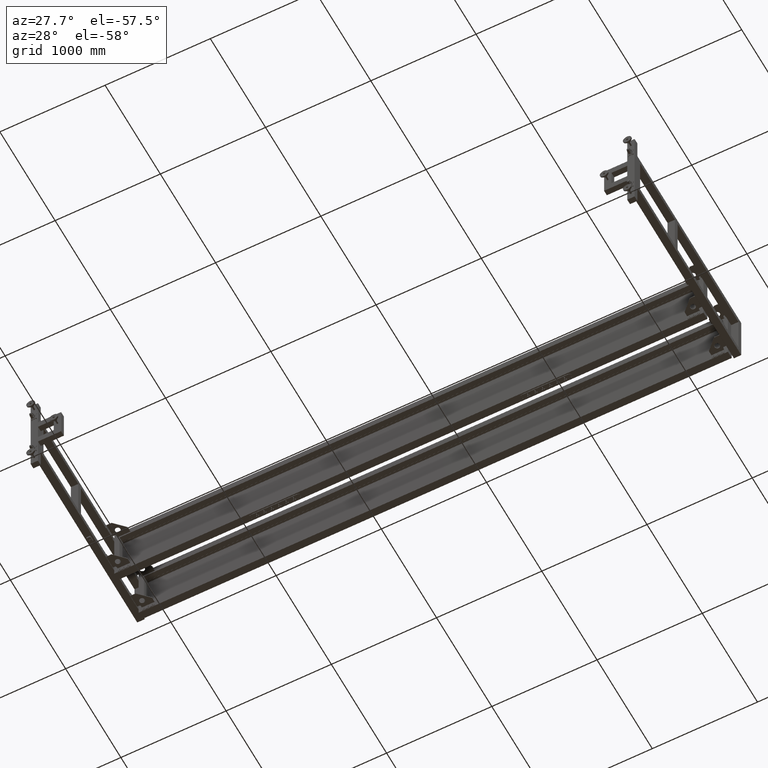
[diagram: clean part render]
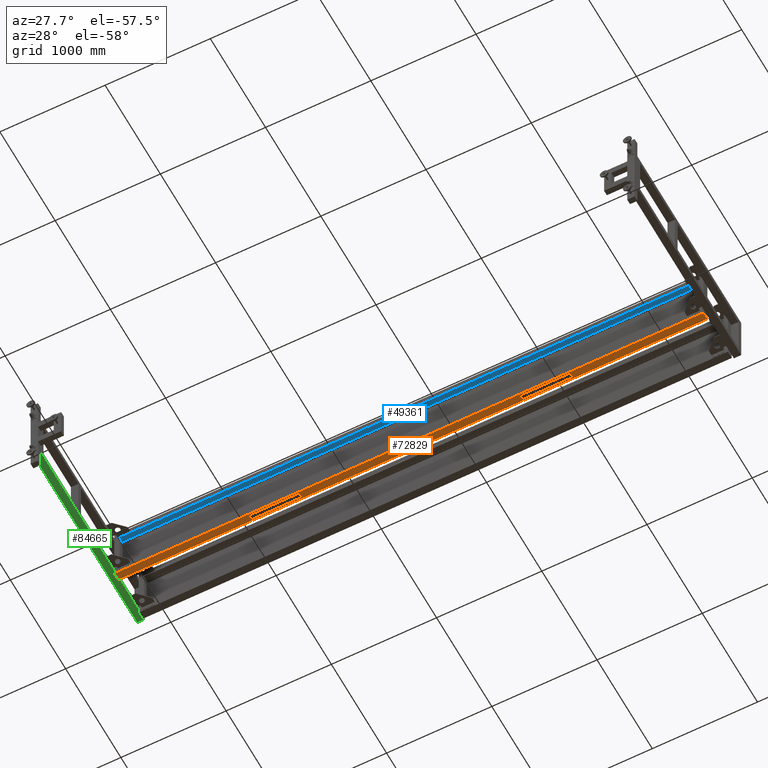
[diagram: same view with three faces highlighted in distinct colors, each labeled with its STEP entity id]
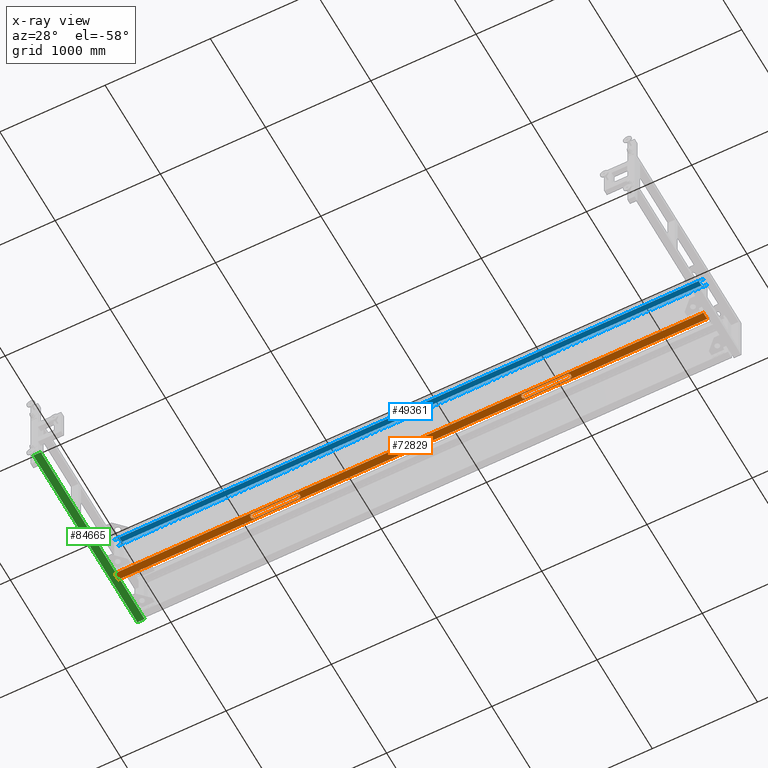
[diagram: x-ray of the same camera — body ghosted, the three highlighted faces saturated]
A machine part, auxiliary view with three faces highlighted in distinct colors.
The next image is the same camera in x-ray (body ghosted, the three faces saturated) — at least one of them is partly hidden behind the body in this view.
Their STEP definitions:

[orange] entity #72829 — the highlighted planar face has unit normal (-0, -0, 1).
#1346 = DIRECTION ( 'NONE',  ( 0.000000000000000000, 1.000000000000000000, 2.042911185666243997E-15 ) ) ;
#1910 = DIRECTION ( 'NONE',  ( 1.000000000000000000, -1.365026013856678295E-16, 0.000000000000000000 ) ) ;
#2050 = EDGE_CURVE ( 'NONE', #95591, #75280, #42420, .T. ) ;
#2436 = CIRCLE ( 'NONE', #25819, 5.000000000000004441 ) ;
#2445 = DIRECTION ( 'NONE',  ( 0.000000000000000000, -2.999999999999999839E-15, 1.000000000000000000 ) ) ;
#2632 = DIRECTION ( 'NONE',  ( 0.000000000000000000, 1.000000000000000000, 0.000000000000000000 ) ) ;
#2715 = EDGE_CURVE ( 'NONE', #90755, #54331, #7554, .T. ) ;
#2934 = CIRCLE ( 'NONE', #105916, 2.600000000000046718 ) ;
#3024 = ORIENTED_EDGE ( 'NONE', *, *, #99035, .F. ) ;
#3592 = CARTESIAN_POINT ( 'NONE',  ( 4329.827512562815173, 486.9410804020134833, -300.0000000000001137 ) ) ;
#3731 = DIRECTION ( 'NONE',  ( 3.178231158697545349E-16, -1.000000000000000000, -2.999999999999999839E-15 ) ) ;
#4086 = CIRCLE ( 'NONE', #110933, 5.000000000000004441 ) ;
#4170 = CARTESIAN_POINT ( 'NONE',  ( 473.8275125628138085, 516.9410804020126307, -300.0000000000000568 ) ) ;
#4325 = CARTESIAN_POINT ( 'NONE',  ( 2589.827512562815627, 531.9410804020134265, -300.0000000000000000 ) ) ;
#4535 = CARTESIAN_POINT ( 'NONE',  ( 3050.827512562816082, 505.9410804020130286, -300.0000000000000568 ) ) ;
#4823 = EDGE_CURVE ( 'NONE', #102930, #12884, #117511, .T. ) ;
#5460 = EDGE_CURVE ( 'NONE', #23975, #48283, #40451, .T. ) ;
#5527 = CARTESIAN_POINT ( 'NONE',  ( 21.82751256281362373, 497.4410804020126307, -300.0000000000001137 ) ) ;
#6268 = CARTESIAN_POINT ( 'NONE',  ( 21.82751256281362373, 546.4410804020125170, -299.9999999999999432 ) ) ;
#7554 = CIRCLE ( 'NONE', #90988, 2.599999999999935696 ) ;
#7572 = VERTEX_POINT ( 'NONE', #81256 ) ;
#7693 = EDGE_LOOP ( 'NONE', ( #89612, #86301, #101750, #15121, #76868, #38794, #113964, #102063, #92361, #19102, #39431, #39099, #21601, #19855, #13779, #70374 ) ) ;
#7846 = CARTESIAN_POINT ( 'NONE',  ( 474.8275125628136948, 505.9410804020157002, -300.0000000000000568 ) ) ;
#8251 = LINE ( 'NONE', #82918, #28241 ) ;
#8275 = LINE ( 'NONE', #35069, #11326 ) ;
#8426 = DIRECTION ( 'NONE',  ( 1.000000000000000000, -2.159379536615654760E-16, -1.601283208593959875E-30 ) ) ;
#8459 = DIRECTION ( 'NONE',  ( 0.000000000000000000, 2.999999999999999839E-15, -1.000000000000000000 ) ) ;
#9897 = EDGE_CURVE ( 'NONE', #32660, #71607, #81161, .T. ) ;
#10165 = EDGE_LOOP ( 'NONE', ( #32947, #116258 ) ) ;
#11235 = CARTESIAN_POINT ( 'NONE',  ( 465.8275125628138085, 497.4410804020126307, -300.0000000000001137 ) ) ;
#11318 = DIRECTION ( 'NONE',  ( 0.000000000000000000, 1.000000000000000000, 0.000000000000000000 ) ) ;
#11326 = VECTOR ( 'NONE', #53250, 1000.000000000000000 ) ;
#11392 = CARTESIAN_POINT ( 'NONE',  ( 12.82751256281372498, 503.3410804020126648, -300.0000000000000568 ) ) ;
#12083 = CARTESIAN_POINT ( 'NONE',  ( 3041.827512562816082, 511.9410804020130286, -300.0000000000000568 ) ) ;
#12207 = ORIENTED_EDGE ( 'NONE', *, *, #74429, .T. ) ;
#12211 = VERTEX_POINT ( 'NONE', #72589 ) ;
#12213 = DIRECTION ( 'NONE',  ( 0.000000000000000000, 1.000000000000000000, 0.000000000000000000 ) ) ;
#12301 = CARTESIAN_POINT ( 'NONE',  ( 2584.827512562816082, 531.9410804020134265, -300.0000000000000000 ) ) ;
#12711 = EDGE_CURVE ( 'NONE', #13046, #51890, #2934, .T. ) ;
#12884 = VERTEX_POINT ( 'NONE', #52675 ) ;
#13046 = VERTEX_POINT ( 'NONE', #35701 ) ;
#13284 = ORIENTED_EDGE ( 'NONE', *, *, #13917, .T. ) ;
#13383 = EDGE_CURVE ( 'NONE', #95858, #103266, #50619, .T. ) ;
#13779 = ORIENTED_EDGE ( 'NONE', *, *, #31055, .F. ) ;
#13917 = EDGE_CURVE ( 'NONE', #34990, #95333, #96565, .T. ) ;
#14014 = ORIENTED_EDGE ( 'NONE', *, *, #97252, .F. ) ;
#14755 = DIRECTION ( 'NONE',  ( 0.000000000000000000, 1.000000000000000000, 0.000000000000000000 ) ) ;
#15121 = ORIENTED_EDGE ( 'NONE', *, *, #45098, .T. ) ;
#15386 = VERTEX_POINT ( 'NONE', #4325 ) ;
#15654 = CARTESIAN_POINT ( 'NONE',  ( 465.8275125628138085, 546.4410804020125170, -299.9999999999999432 ) ) ;
#15746 = CIRCLE ( 'NONE', #25468, 5.000000000000004441 ) ;
#15833 = DIRECTION ( 'NONE',  ( -3.553834002357183893E-31, -2.603491776919587014E-15, 1.000000000000000000 ) ) ;
#15866 = CARTESIAN_POINT ( 'NONE',  ( 3054.827512562815627, 526.9410804020393471, -300.0000000000000000 ) ) ;
#16452 = FACE_BOUND ( 'NONE', #118392, .T. ) ;
#16537 = DIRECTION ( 'NONE',  ( 3.178231158697545349E-16, -1.000000000000000000, -2.042911185667941626E-15 ) ) ;
#16616 = CARTESIAN_POINT ( 'NONE',  ( 8.827512562813721431, 511.9410804020125738, -300.0000000000000568 ) ) ;
#16841 = DIRECTION ( 'NONE',  ( 3.178231158697545349E-16, -1.000000000000000000, -2.042911185667970814E-15 ) ) ;
#17443 = CIRCLE ( 'NONE', #100973, 2.599999999999935696 ) ;
#18218 = EDGE_CURVE ( 'NONE', #41128, #107957, #115385, .T. ) ;
#18774 = LINE ( 'NONE', #91055, #38301 ) ;
#19102 = ORIENTED_EDGE ( 'NONE', *, *, #99640, .T. ) ;
#19247 = AXIS2_PLACEMENT_3D ( 'NONE', #21300, #114363, #84472 ) ;
#19361 = DIRECTION ( 'NONE',  ( 1.000000000000000000, -2.855621721992514943E-14, -8.566865165977544482E-29 ) ) ;
#19855 = ORIENTED_EDGE ( 'NONE', *, *, #21476, .T. ) ;
#20598 = LINE ( 'NONE', #12083, #43920 ) ;
#20892 = EDGE_CURVE ( 'NONE', #7572, #80140, #106743, .T. ) ;
#21060 = VERTEX_POINT ( 'NONE', #25568 ) ;
#21138 = ORIENTED_EDGE ( 'NONE', *, *, #74343, .F. ) ;
#21149 = VECTOR ( 'NONE', #107241, 1000.000000000000000 ) ;
#21300 = CARTESIAN_POINT ( 'NONE',  ( 2589.827512562815627, 516.9410804020129717, -300.0000000000000568 ) ) ;
#21476 = EDGE_CURVE ( 'NONE', #108671, #68589, #68702, .T. ) ;
#21601 = ORIENTED_EDGE ( 'NONE', *, *, #22232, .F. ) ;
#21645 = EDGE_CURVE ( 'NONE', #51732, #15386, #110720, .T. ) ;
#22090 = CARTESIAN_POINT ( 'NONE',  ( 465.8275125628138085, 531.9410804020130854, -300.0000000000000000 ) ) ;
#22232 = EDGE_CURVE ( 'NONE', #108671, #15386, #88939, .T. ) ;
#22439 = CARTESIAN_POINT ( 'NONE',  ( 2588.827512562816082, 508.5410804020160640, -300.0000000000000568 ) ) ;
#22501 = CARTESIAN_POINT ( 'NONE',  ( 3050.827512562816082, 503.3410804020130627, -300.0000000000000568 ) ) ;
#22904 = VECTOR ( 'NONE', #30925, 1000.000000000000000 ) ;
#23637 = AXIS2_PLACEMENT_3D ( 'NONE', #68030, #32268, #12213 ) ;
#23748 = EDGE_CURVE ( 'NONE', #95591, #71967, #106959, .T. ) ;
#23825 = VERTEX_POINT ( 'NONE', #100825 ) ;
#23975 = VERTEX_POINT ( 'NONE', #6268 ) ;
#24061 = DIRECTION ( 'NONE',  ( 9.534693476092635663E-31, -2.999999999999999839E-15, 1.000000000000000000 ) ) ;
#24230 = VECTOR ( 'NONE', #50501, 1000.000000000000000 ) ;
#24819 = VERTEX_POINT ( 'NONE', #113440 ) ;
#24948 = FACE_BOUND ( 'NONE', #7693, .T. ) ;
#25027 = LINE ( 'NONE', #99810, #116731 ) ;
#25468 = AXIS2_PLACEMENT_3D ( 'NONE', #39045, #2445, #75901 ) ;
#25568 = CARTESIAN_POINT ( 'NONE',  ( 21.82751256281362373, 531.9410804020385513, -300.0000000000000000 ) ) ;
#25694 = VECTOR ( 'NONE', #16841, 1000.000000000000000 ) ;
#25786 = ORIENTED_EDGE ( 'NONE', *, *, #2715, .F. ) ;
#25819 = AXIS2_PLACEMENT_3D ( 'NONE', #41014, #107196, #2632 ) ;
#25920 = EDGE_CURVE ( 'NONE', #49812, #51732, #25027, .T. ) ;
#26028 = ORIENTED_EDGE ( 'NONE', *, *, #116708, .T. ) ;
#26171 = FACE_BOUND ( 'NONE', #71870, .T. ) ;
#26297 = EDGE_CURVE ( 'NONE', #78789, #118175, #74034, .T. ) ;
#26328 = EDGE_LOOP ( 'NONE', ( #106987, #82122 ) ) ;
#26524 = DIRECTION ( 'NONE',  ( 0.000000000000000000, 1.000000000000000000, 0.000000000000000000 ) ) ;
#26811 = CARTESIAN_POINT ( 'NONE',  ( 478.8275125628136948, 516.9410804020126307, -300.0000000000000568 ) ) ;
#27283 = EDGE_CURVE ( 'NONE', #51107, #103266, #2436, .T. ) ;
#27801 = VECTOR ( 'NONE', #1910, 1000.000000000000000 ) ;
#27911 = VERTEX_POINT ( 'NONE', #102576 ) ;
#28001 = EDGE_CURVE ( 'NONE', #51107, #113644, #103162, .T. ) ;
#28075 = ORIENTED_EDGE ( 'NONE', *, *, #18218, .F. ) ;
#28241 = VECTOR ( 'NONE', #111024, 1000.000000000000000 ) ;
#28305 = VERTEX_POINT ( 'NONE', #103131 ) ;
#28686 = LINE ( 'NONE', #56032, #27801 ) ;
#28738 = EDGE_LOOP ( 'NONE', ( #63513, #78971, #43381, #94432 ) ) ;
#28769 = AXIS2_PLACEMENT_3D ( 'NONE', #44036, #80922, #29261 ) ;
#28781 = AXIS2_PLACEMENT_3D ( 'NONE', #82342, #43606, #26524 ) ;
#29013 = VERTEX_POINT ( 'NONE', #64762 ) ;
#29205 = DIRECTION ( 'NONE',  ( 0.000000000000000000, 2.999999999999999839E-15, -1.000000000000000000 ) ) ;
#29261 = DIRECTION ( 'NONE',  ( 0.000000000000000000, 1.000000000000000000, 0.000000000000000000 ) ) ;
#29260 = CIRCLE ( 'NONE', #89432, 2.600000000000046718 ) ;
#29579 = DIRECTION ( 'NONE',  ( 0.000000000000000000, 1.000000000000000000, 0.000000000000000000 ) ) ;
#29862 = CARTESIAN_POINT ( 'NONE',  ( 3041.827512562815627, 546.4410804020129717, -299.9999999999999432 ) ) ;
#29865 = AXIS2_PLACEMENT_3D ( 'NONE', #66128, #85601, #111924 ) ;
#29877 = VECTOR ( 'NONE', #52774, 1000.000000000000000 ) ;
#29911 = CARTESIAN_POINT ( 'NONE',  ( -1266.172487437185964, 556.9410804020126307, -299.9999999999999432 ) ) ;
#29999 = VECTOR ( 'NONE', #116194, 1000.000000000000000 ) ;
#30416 = CARTESIAN_POINT ( 'NONE',  ( 12.82751256281372498, 505.9410804020125738, -300.0000000000000568 ) ) ;
#30492 = CARTESIAN_POINT ( 'NONE',  ( 2589.827512562815627, 511.9410804020129149, -300.0000000000000568 ) ) ;
#30634 = CARTESIAN_POINT ( 'NONE',  ( 3054.827512562816082, 516.9410804020130854, -300.0000000000000568 ) ) ;
#30751 = ORIENTED_EDGE ( 'NONE', *, *, #4823, .T. ) ;
#30925 = DIRECTION ( 'NONE',  ( 3.178231158697545349E-16, -1.000000000000000000, -2.603491776919587014E-15 ) ) ;
#31055 = EDGE_CURVE ( 'NONE', #38225, #68589, #65742, .T. ) ;
#31507 = CARTESIAN_POINT ( 'NONE',  ( 473.8275125628138085, 511.9410804020125738, -300.0000000000000568 ) ) ;
#31627 = ORIENTED_EDGE ( 'NONE', *, *, #54680, .F. ) ;
#31834 = CARTESIAN_POINT ( 'NONE',  ( 21.82751256281362373, 546.4410804020125170, -299.9999999999999432 ) ) ;
#31911 = CIRCLE ( 'NONE', #78379, 2.599999999999935696 ) ;
#32079 = LINE ( 'NONE', #43632, #61810 ) ;
#32268 = DIRECTION ( 'NONE',  ( 0.000000000000000000, 2.999999999999999839E-15, -1.000000000000000000 ) ) ;
#32660 = VERTEX_POINT ( 'NONE', #93165 ) ;
#32678 = CARTESIAN_POINT ( 'NONE',  ( 3050.827512562816082, 508.5410804020130513, -300.0000000000000568 ) ) ;
#32947 = ORIENTED_EDGE ( 'NONE', *, *, #20892, .T. ) ;
#33490 = DIRECTION ( 'NONE',  ( 0.000000000000000000, 1.000000000000000000, 2.999999999999999839E-15 ) ) ;
#34130 = CARTESIAN_POINT ( 'NONE',  ( 1133.827512562814718, 556.9410804020135402, -299.9999999999999432 ) ) ;
#34180 = VERTEX_POINT ( 'NONE', #37377 ) ;
#34728 = EDGE_CURVE ( 'NONE', #54331, #90755, #31911, .T. ) ;
#34775 = EDGE_LOOP ( 'NONE', ( #45196, #14014, #48947, #71088, #100489, #37687, #45305, #38504, #31627, #70672, #12207, #71399, #38858, #82245, #3024, #114777 ) ) ;
#34990 = VERTEX_POINT ( 'NONE', #92151 ) ;
#35069 = CARTESIAN_POINT ( 'NONE',  ( 3054.827512562815627, 531.9410804020394608, -300.0000000000000000 ) ) ;
#35139 = DIRECTION ( 'NONE',  ( 0.000000000000000000, 1.000000000000000000, 0.000000000000000000 ) ) ;
#35179 = DIRECTION ( 'NONE',  ( 0.000000000000000000, 2.999999999999999839E-15, -1.000000000000000000 ) ) ;
#35327 = FACE_BOUND ( 'NONE', #10165, .T. ) ;
#35701 = CARTESIAN_POINT ( 'NONE',  ( 12.82751256281372498, 540.5410804020125397, -299.9999999999999432 ) ) ;
#35705 = CARTESIAN_POINT ( 'NONE',  ( 474.8275125628136948, 505.9410804020157002, -300.0000000000000568 ) ) ;
#35854 = DIRECTION ( 'NONE',  ( 0.000000000000000000, 1.000000000000000000, 0.000000000000000000 ) ) ;
#36140 = DIRECTION ( 'NONE',  ( 0.000000000000000000, -1.000000000000000000, -2.603491776919587014E-15 ) ) ;
#36244 = DIRECTION ( 'NONE',  ( 9.534693476092635663E-31, -2.999999999999999839E-15, 1.000000000000000000 ) ) ;
#36965 = VERTEX_POINT ( 'NONE', #31507 ) ;
#37377 = CARTESIAN_POINT ( 'NONE',  ( 8.827512562813721431, 516.9410804020126307, -300.0000000000000568 ) ) ;
#37687 = ORIENTED_EDGE ( 'NONE', *, *, #13383, .F. ) ;
#38225 = VERTEX_POINT ( 'NONE', #30492 ) ;
#38301 = VECTOR ( 'NONE', #44969, 1000.000000000000000 ) ;
#38504 = ORIENTED_EDGE ( 'NONE', *, *, #5460, .F. ) ;
#38728 = EDGE_CURVE ( 'NONE', #36965, #113644, #71114, .T. ) ;
#38794 = ORIENTED_EDGE ( 'NONE', *, *, #111156, .T. ) ;
#38858 = ORIENTED_EDGE ( 'NONE', *, *, #72606, .T. ) ;
#38976 = CARTESIAN_POINT ( 'NONE',  ( 474.8275125628136948, 508.5410804020157229, -300.0000000000000568 ) ) ;
#39045 = CARTESIAN_POINT ( 'NONE',  ( 13.82751256281361485, 526.9410804020388923, -300.0000000000000000 ) ) ;
#39099 = ORIENTED_EDGE ( 'NONE', *, *, #21645, .T. ) ;
#39431 = ORIENTED_EDGE ( 'NONE', *, *, #25920, .T. ) ;
#40035 = CARTESIAN_POINT ( 'NONE',  ( 2588.827512562816082, 505.9410804020160413, -300.0000000000000568 ) ) ;
#40451 = LINE ( 'NONE', #31834, #101039 ) ;
#40547 = DIRECTION ( 'NONE',  ( 0.000000000000000000, 1.000000000000000000, 0.000000000000000000 ) ) ;
#40826 = EDGE_LOOP ( 'NONE', ( #26028, #13284 ) ) ;
#41014 = CARTESIAN_POINT ( 'NONE',  ( 473.8275125628138085, 526.9410804020129717, -300.0000000000000000 ) ) ;
#41128 = VERTEX_POINT ( 'NONE', #56545 ) ;
#41730 = CARTESIAN_POINT ( 'NONE',  ( 8.827512562813721431, 526.9410804020388923, -300.0000000000000000 ) ) ;
#41789 = EDGE_CURVE ( 'NONE', #28305, #90628, #4086, .T. ) ;
#41983 = CARTESIAN_POINT ( 'NONE',  ( 1133.827512562814718, 556.9410804020135402, -299.9999999999999432 ) ) ;
#42420 = LINE ( 'NONE', #45262, #99694 ) ;
#42677 = FACE_BOUND ( 'NONE', #34775, .T. ) ;
#43381 = ORIENTED_EDGE ( 'NONE', *, *, #109910, .F. ) ;
#43606 = DIRECTION ( 'NONE',  ( -9.534693476092635663E-31, 2.999999999999999839E-15, -1.000000000000000000 ) ) ;
#43632 = CARTESIAN_POINT ( 'NONE',  ( 465.8275125628138085, 546.4410804020125170, -299.9999999999999432 ) ) ;
#43698 = ORIENTED_EDGE ( 'NONE', *, *, #12711, .F. ) ;
#43920 = VECTOR ( 'NONE', #86182, 1000.000000000000000 ) ;
#44036 = CARTESIAN_POINT ( 'NONE',  ( 13.82751256281361485, 516.9410804020126307, -300.0000000000000568 ) ) ;
#44475 = FACE_BOUND ( 'NONE', #79626, .T. ) ;
#44969 = DIRECTION ( 'NONE',  ( 0.000000000000000000, -1.000000000000000000, -2.042911185667970814E-15 ) ) ;
#45061 = FACE_BOUND ( 'NONE', #26328, .T. ) ;
#45098 = EDGE_CURVE ( 'NONE', #49834, #27911, #61357, .T. ) ;
#45196 = ORIENTED_EDGE ( 'NONE', *, *, #112557, .F. ) ;
#45262 = CARTESIAN_POINT ( 'NONE',  ( -1266.172487437185964, 556.9410804020126307, -299.9999999999999432 ) ) ;
#45305 = ORIENTED_EDGE ( 'NONE', *, *, #63394, .F. ) ;
#46388 = CARTESIAN_POINT ( 'NONE',  ( 3041.827512562815627, 546.4410804020129717, -299.9999999999999432 ) ) ;
#47386 = LINE ( 'NONE', #54068, #49184 ) ;
#47919 = ORIENTED_EDGE ( 'NONE', *, *, #103584, .T. ) ;
#48283 = VERTEX_POINT ( 'NONE', #15654 ) ;
#48403 = DIRECTION ( 'NONE',  ( 0.000000000000000000, -1.000000000000000000, -2.999999999999999839E-15 ) ) ;
#48947 = ORIENTED_EDGE ( 'NONE', *, *, #38728, .T. ) ;
#49177 = CARTESIAN_POINT ( 'NONE',  ( 2597.827512562816082, 546.4410804020128580, -299.9999999999999432 ) ) ;
#49184 = VECTOR ( 'NONE', #91730, 1000.000000000000000 ) ;
#49298 = VERTEX_POINT ( 'NONE', #30634 ) ;
#49340 = VERTEX_POINT ( 'NONE', #87674 ) ;
#49777 = CARTESIAN_POINT ( 'NONE',  ( 4329.827512562815173, 556.9410804020135402, -299.9999999999999432 ) ) ;
#49812 = VERTEX_POINT ( 'NONE', #49177 ) ;
#49834 = VERTEX_POINT ( 'NONE', #77050 ) ;
#50251 = VERTEX_POINT ( 'NONE', #11235 ) ;
#50381 = AXIS2_PLACEMENT_3D ( 'NONE', #40035, #59885, #114735 ) ;
#50501 = DIRECTION ( 'NONE',  ( 1.000000000000000000, 2.553105581768966438E-16, -1.875376730785736675E-31 ) ) ;
#50619 = LINE ( 'NONE', #22090, #115908 ) ;
#51107 = VERTEX_POINT ( 'NONE', #68336 ) ;
#51305 = CARTESIAN_POINT ( 'NONE',  ( 3050.827512562815627, 535.3410804020130627, -300.0000000000000000 ) ) ;
#51516 = CARTESIAN_POINT ( 'NONE',  ( 2588.827512562816082, 535.3410804020161322, -300.0000000000000000 ) ) ;
#51577 = EDGE_CURVE ( 'NONE', #82561, #49834, #20598, .T. ) ;
#51732 = VERTEX_POINT ( 'NONE', #97136 ) ;
#51790 = EDGE_CURVE ( 'NONE', #118175, #78789, #63099, .T. ) ;
#51890 = VERTEX_POINT ( 'NONE', #59283 ) ;
#52003 = CARTESIAN_POINT ( 'NONE',  ( 2588.827512562816082, 505.9410804020160413, -300.0000000000000568 ) ) ;
#52142 = LINE ( 'NONE', #49777, #22904 ) ;
#52393 = DIRECTION ( 'NONE',  ( -9.534693476092635663E-31, 2.999999999999999839E-15, -1.000000000000000000 ) ) ;
#52675 = CARTESIAN_POINT ( 'NONE',  ( 2588.827512562816082, 540.5410804020159503, -299.9999999999999432 ) ) ;
#52774 = DIRECTION ( 'NONE',  ( 1.000000000000000000, -1.365026013856678295E-16, 0.000000000000000000 ) ) ;
#53250 = DIRECTION ( 'NONE',  ( -1.000000000000000000, -2.887404033579490678E-14, -8.566865165977544482E-29 ) ) ;
#53888 = DIRECTION ( 'NONE',  ( 0.000000000000000000, 2.999999999999999839E-15, -1.000000000000000000 ) ) ;
#54068 = CARTESIAN_POINT ( 'NONE',  ( 21.82751256281362373, 511.9410804020125738, -300.0000000000000568 ) ) ;
#54151 = VECTOR ( 'NONE', #19361, 1000.000000000000000 ) ;
#54326 = VECTOR ( 'NONE', #79623, 1000.000000000000000 ) ;
#54331 = VERTEX_POINT ( 'NONE', #114019 ) ;
#54495 = DIRECTION ( 'NONE',  ( 9.534693476092635663E-31, -2.999999999999999839E-15, 1.000000000000000000 ) ) ;
#54680 = EDGE_CURVE ( 'NONE', #21060, #23975, #59042, .T. ) ;
#54728 = DIRECTION ( 'NONE',  ( -1.000000000000000000, -1.118464720166734600E-15, -2.401924812890939987E-30 ) ) ;
#55302 = EDGE_CURVE ( 'NONE', #28305, #29013, #8275, .T. ) ;
#56032 = CARTESIAN_POINT ( 'NONE',  ( 1133.827512562814718, 486.9410804020135402, -300.0000000000001137 ) ) ;
#56545 = CARTESIAN_POINT ( 'NONE',  ( 474.8275125628136948, 540.5410804020156093, -299.9999999999999432 ) ) ;
#57010 = EDGE_CURVE ( 'NONE', #81932, #113442, #75912, .T. ) ;
#57144 = VECTOR ( 'NONE', #84546, 1000.000000000000000 ) ;
#57343 = AXIS2_PLACEMENT_3D ( 'NONE', #89749, #71442, #35139 ) ;
#58990 = VECTOR ( 'NONE', #120005, 1000.000000000000000 ) ;
#59042 = LINE ( 'NONE', #96190, #81090 ) ;
#59283 = CARTESIAN_POINT ( 'NONE',  ( 12.82751256281372498, 535.3410804020127216, -300.0000000000000000 ) ) ;
#59799 = CIRCLE ( 'NONE', #108417, 2.599999999999935696 ) ;
#59820 = DIRECTION ( 'NONE',  ( 9.534693476092635663E-31, -2.999999999999999839E-15, 1.000000000000000000 ) ) ;
#59885 = DIRECTION ( 'NONE',  ( 9.534693476092635663E-31, -2.999999999999999839E-15, 1.000000000000000000 ) ) ;
#60465 = DIRECTION ( 'NONE',  ( 0.000000000000000000, 1.000000000000000000, 0.000000000000000000 ) ) ;
#60749 = CARTESIAN_POINT ( 'NONE',  ( 3054.827512562816082, 511.9410804020130286, -300.0000000000000568 ) ) ;
#61152 = DIRECTION ( 'NONE',  ( 0.000000000000000000, -1.000000000000000000, -2.042911185667941626E-15 ) ) ;
#61357 = LINE ( 'NONE', #60749, #29999 ) ;
#61455 = CARTESIAN_POINT ( 'NONE',  ( 3049.827512562815627, 526.9410804020393471, -300.0000000000000000 ) ) ;
#61810 = VECTOR ( 'NONE', #61152, 1000.000000000000000 ) ;
#62544 = FACE_BOUND ( 'NONE', #63836, .T. ) ;
#63099 = CIRCLE ( 'NONE', #57343, 2.600000000000046718 ) ;
#63394 = EDGE_CURVE ( 'NONE', #48283, #95858, #32079, .T. ) ;
#63513 = ORIENTED_EDGE ( 'NONE', *, *, #23748, .T. ) ;
#63836 = EDGE_LOOP ( 'NONE', ( #110522, #28075 ) ) ;
#64762 = CARTESIAN_POINT ( 'NONE',  ( 3041.827512562815627, 531.9410804020390060, -300.0000000000000000 ) ) ;
#64846 = CARTESIAN_POINT ( 'NONE',  ( 2597.827512562816082, 511.9410804020129149, -300.0000000000000568 ) ) ;
#65262 = ORIENTED_EDGE ( 'NONE', *, *, #34728, .F. ) ;
#65360 = DIRECTION ( 'NONE',  ( 9.534693476092635663E-31, -2.999999999999999839E-15, 1.000000000000000000 ) ) ;
#65455 = CARTESIAN_POINT ( 'NONE',  ( 8.827512562813721431, 531.9410804020390060, -300.0000000000000000 ) ) ;
#65742 = CIRCLE ( 'NONE', #19247, 5.000000000000004441 ) ;
#66128 = CARTESIAN_POINT ( 'NONE',  ( 12.82751256281372498, 537.9410804020126307, -299.9999999999999432 ) ) ;
#66212 = DIRECTION ( 'NONE',  ( 0.000000000000000000, 1.000000000000000000, 0.000000000000000000 ) ) ;
#66777 = CARTESIAN_POINT ( 'NONE',  ( 3041.827512562816082, 497.4410804020131422, -300.0000000000001137 ) ) ;
#66847 = VECTOR ( 'NONE', #48403, 1000.000000000000000 ) ;
#66871 = DIRECTION ( 'NONE',  ( 0.000000000000000000, 1.000000000000000000, 0.000000000000000000 ) ) ;
#68013 = EDGE_CURVE ( 'NONE', #24819, #49340, #88275, .T. ) ;
#68030 = CARTESIAN_POINT ( 'NONE',  ( 12.82751256281372498, 505.9410804020125738, -300.0000000000000568 ) ) ;
#68144 = LINE ( 'NONE', #5527, #54326 ) ;
#68336 = CARTESIAN_POINT ( 'NONE',  ( 478.8275125628136948, 526.9410804020129717, -300.0000000000000000 ) ) ;
#68589 = VERTEX_POINT ( 'NONE', #82909 ) ;
#68702 = LINE ( 'NONE', #12301, #85622 ) ;
#68731 = CARTESIAN_POINT ( 'NONE',  ( 21.82751256281362373, 497.4410804020126307, -300.0000000000001137 ) ) ;
#70300 = DIRECTION ( 'NONE',  ( 0.000000000000000000, 1.000000000000000000, 0.000000000000000000 ) ) ;
#70374 = ORIENTED_EDGE ( 'NONE', *, *, #91879, .T. ) ;
#70500 = EDGE_CURVE ( 'NONE', #34180, #83922, #79548, .T. ) ;
#70672 = ORIENTED_EDGE ( 'NONE', *, *, #102375, .F. ) ;
#71088 = ORIENTED_EDGE ( 'NONE', *, *, #28001, .F. ) ;
#71114 = CIRCLE ( 'NONE', #112083, 5.000000000000004441 ) ;
#71399 = ORIENTED_EDGE ( 'NONE', *, *, #70500, .F. ) ;
#71442 = DIRECTION ( 'NONE',  ( 9.534693476092635663E-31, -2.999999999999999839E-15, 1.000000000000000000 ) ) ;
#71458 = CARTESIAN_POINT ( 'NONE',  ( 3050.827512562815627, 537.9410804020130854, -299.9999999999999432 ) ) ;
#71607 = VERTEX_POINT ( 'NONE', #100213 ) ;
#71870 = EDGE_LOOP ( 'NONE', ( #65262, #25786 ) ) ;
#71967 = VERTEX_POINT ( 'NONE', #90383 ) ;
#72018 = CARTESIAN_POINT ( 'NONE',  ( 2597.827512562816082, 511.9410804020129149, -300.0000000000000568 ) ) ;
#72216 = FACE_BOUND ( 'NONE', #40826, .T. ) ;
#72589 = CARTESIAN_POINT ( 'NONE',  ( 465.8275125628138085, 511.9410804020125738, -300.0000000000000568 ) ) ;
#72606 = EDGE_CURVE ( 'NONE', #34180, #49340, #90870, .T. ) ;
#72631 = CARTESIAN_POINT ( 'NONE',  ( 2588.827512562816082, 537.9410804020160413, -299.9999999999999432 ) ) ;
#72829 = ADVANCED_FACE ( 'NONE', ( #107687, #72216, #44475, #35327, #45061, #24948, #16452, #62544, #26171, #91755, #42677 ), #98523, .F. ) ;
#73443 = AXIS2_PLACEMENT_3D ( 'NONE', #34130, #15833, #89933 ) ;
#74034 = CIRCLE ( 'NONE', #79857, 2.600000000000046718 ) ;
#74162 = DIRECTION ( 'NONE',  ( -9.534693476092635663E-31, 2.999999999999999839E-15, -1.000000000000000000 ) ) ;
#74343 = EDGE_CURVE ( 'NONE', #113442, #81932, #29260, .T. ) ;
#74429 = EDGE_CURVE ( 'NONE', #23825, #83922, #15746, .T. ) ;
#75140 = CIRCLE ( 'NONE', #106383, 5.000000000000004441 ) ;
#75280 = VERTEX_POINT ( 'NONE', #108843 ) ;
#75446 = DIRECTION ( 'NONE',  ( -1.000000000000000000, -5.337610695313200109E-16, -1.601283208593959875E-30 ) ) ;
#75901 = DIRECTION ( 'NONE',  ( 0.000000000000000000, 1.000000000000000000, 0.000000000000000000 ) ) ;
#75912 = CIRCLE ( 'NONE', #23637, 2.600000000000046718 ) ;
#76034 = EDGE_CURVE ( 'NONE', #71607, #82561, #80777, .T. ) ;
#76868 = ORIENTED_EDGE ( 'NONE', *, *, #87087, .F. ) ;
#77050 = CARTESIAN_POINT ( 'NONE',  ( 3041.827512562816082, 511.9410804020130286, -300.0000000000000568 ) ) ;
#77170 = EDGE_CURVE ( 'NONE', #29013, #92854, #8251, .T. ) ;
#77302 = DIRECTION ( 'NONE',  ( 1.000000000000000000, 6.251255769285789110E-17, 1.875376730785736675E-31 ) ) ;
#78356 = CARTESIAN_POINT ( 'NONE',  ( 3041.827512562816082, 497.4410804020131422, -300.0000000000001137 ) ) ;
#78379 = AXIS2_PLACEMENT_3D ( 'NONE', #7846, #110039, #35854 ) ;
#78402 = VERTEX_POINT ( 'NONE', #68731 ) ;
#78789 = VERTEX_POINT ( 'NONE', #22501 ) ;
#78971 = ORIENTED_EDGE ( 'NONE', *, *, #93261, .T. ) ;
#79443 = DIRECTION ( 'NONE',  ( 0.000000000000000000, 1.000000000000000000, 0.000000000000000000 ) ) ;
#79548 = LINE ( 'NONE', #107671, #91641 ) ;
#79623 = DIRECTION ( 'NONE',  ( -1.000000000000000000, -6.251255769285789110E-17, -1.875376730785736675E-31 ) ) ;
#79626 = EDGE_LOOP ( 'NONE', ( #30751, #47919 ) ) ;
#79857 = AXIS2_PLACEMENT_3D ( 'NONE', #4535, #59820, #40547 ) ;
#80035 = DIRECTION ( 'NONE',  ( 0.000000000000000000, -2.999999999999999839E-15, 1.000000000000000000 ) ) ;
#80140 = VERTEX_POINT ( 'NONE', #22439 ) ;
#80777 = LINE ( 'NONE', #78356, #24230 ) ;
#80922 = DIRECTION ( 'NONE',  ( 0.000000000000000000, -2.999999999999999839E-15, 1.000000000000000000 ) ) ;
#81090 = VECTOR ( 'NONE', #1346, 1000.000000000000000 ) ;
#81161 = LINE ( 'NONE', #72018, #25694 ) ;
#81256 = CARTESIAN_POINT ( 'NONE',  ( 2588.827512562816082, 503.3410804020160754, -300.0000000000000568 ) ) ;
#81814 = VERTEX_POINT ( 'NONE', #3592 ) ;
#81932 = VERTEX_POINT ( 'NONE', #87714 ) ;
#82122 = ORIENTED_EDGE ( 'NONE', *, *, #51790, .T. ) ;
#82245 = ORIENTED_EDGE ( 'NONE', *, *, #68013, .F. ) ;
#82342 = CARTESIAN_POINT ( 'NONE',  ( 2589.827512562815627, 526.9410804020133128, -300.0000000000000000 ) ) ;
#82561 = VERTEX_POINT ( 'NONE', #66777 ) ;
#82909 = CARTESIAN_POINT ( 'NONE',  ( 2584.827512562816082, 516.9410804020129717, -300.0000000000000568 ) ) ;
#82918 = CARTESIAN_POINT ( 'NONE',  ( 3041.827512562815627, 546.4410804020129717, -299.9999999999999432 ) ) ;
#83477 = CARTESIAN_POINT ( 'NONE',  ( 2588.827512562816082, 537.9410804020160413, -299.9999999999999432 ) ) ;
#83724 = LINE ( 'NONE', #65455, #54151 ) ;
#83922 = VERTEX_POINT ( 'NONE', #41730 ) ;
#83930 = LINE ( 'NONE', #29862, #57144 ) ;
#84472 = DIRECTION ( 'NONE',  ( 0.000000000000000000, 1.000000000000000000, 0.000000000000000000 ) ) ;
#84546 = DIRECTION ( 'NONE',  ( -1.000000000000000000, -2.553105581768966438E-16, 1.875376730785736675E-31 ) ) ;
#84627 = CARTESIAN_POINT ( 'NONE',  ( 465.8275125628138085, 511.9410804020125738, -300.0000000000000568 ) ) ;
#85397 = DIRECTION ( 'NONE',  ( 0.000000000000000000, 2.999999999999999839E-15, -1.000000000000000000 ) ) ;
#85601 = DIRECTION ( 'NONE',  ( 0.000000000000000000, 2.999999999999999839E-15, -1.000000000000000000 ) ) ;
#85622 = VECTOR ( 'NONE', #3731, 1000.000000000000000 ) ;
#86182 = DIRECTION ( 'NONE',  ( -3.094466517449440847E-14, 1.000000000000000000, 2.042911185667979886E-15 ) ) ;
#86301 = ORIENTED_EDGE ( 'NONE', *, *, #76034, .T. ) ;
#87087 = EDGE_CURVE ( 'NONE', #49298, #27911, #75140, .T. ) ;
#87363 = DIRECTION ( 'NONE',  ( 9.534693476092635663E-31, -2.999999999999999839E-15, 1.000000000000000000 ) ) ;
#87674 = CARTESIAN_POINT ( 'NONE',  ( 13.82751256281361485, 511.9410804020125738, -300.0000000000000568 ) ) ;
#87714 = CARTESIAN_POINT ( 'NONE',  ( 12.82751256281372498, 508.5410804020125966, -300.0000000000000568 ) ) ;
#87880 = EDGE_CURVE ( 'NONE', #80140, #7572, #112479, .T. ) ;
#88275 = LINE ( 'NONE', #16616, #21149 ) ;
#88816 = DIRECTION ( 'NONE',  ( 1.000000000000000000, -8.006416042969800163E-16, -2.401924812890939987E-30 ) ) ;
#88939 = CIRCLE ( 'NONE', #28781, 5.000000000000004441 ) ;
#89432 = AXIS2_PLACEMENT_3D ( 'NONE', #30416, #29205, #66212 ) ;
#89612 = ORIENTED_EDGE ( 'NONE', *, *, #9897, .T. ) ;
#89749 = CARTESIAN_POINT ( 'NONE',  ( 3050.827512562816082, 505.9410804020130286, -300.0000000000000568 ) ) ;
#89933 = DIRECTION ( 'NONE',  ( -1.365026013856678295E-16, -1.000000000000000000, -2.603491776919587014E-15 ) ) ;
#90383 = CARTESIAN_POINT ( 'NONE',  ( 4329.827512562815173, 556.9410804020135402, -299.9999999999999432 ) ) ;
#90628 = VERTEX_POINT ( 'NONE', #15866 ) ;
#90707 = AXIS2_PLACEMENT_3D ( 'NONE', #111137, #65360, #100783 ) ;
#90755 = VERTEX_POINT ( 'NONE', #38976 ) ;
#90870 = CIRCLE ( 'NONE', #28769, 5.000000000000004441 ) ;
#90988 = AXIS2_PLACEMENT_3D ( 'NONE', #35705, #53888, #120209 ) ;
#91055 = CARTESIAN_POINT ( 'NONE',  ( 465.8275125628138085, 511.9410804020125738, -300.0000000000000568 ) ) ;
#91353 = VECTOR ( 'NONE', #75446, 1000.000000000000000 ) ;
#91444 = DIRECTION ( 'NONE',  ( 0.000000000000000000, 1.000000000000000000, 0.000000000000000000 ) ) ;
#91641 = VECTOR ( 'NONE', #33490, 1000.000000000000000 ) ;
#91685 = CARTESIAN_POINT ( 'NONE',  ( 12.82751256281372498, 537.9410804020126307, -299.9999999999999432 ) ) ;
#91730 = DIRECTION ( 'NONE',  ( 3.062684205862465112E-14, 1.000000000000000000, 2.042911185667979886E-15 ) ) ;
#91755 = FACE_BOUND ( 'NONE', #118115, .T. ) ;
#91879 = EDGE_CURVE ( 'NONE', #38225, #32660, #120332, .T. ) ;
#92151 = CARTESIAN_POINT ( 'NONE',  ( 3050.827512562815627, 540.5410804020129945, -299.9999999999999432 ) ) ;
#92361 = ORIENTED_EDGE ( 'NONE', *, *, #77170, .T. ) ;
#92854 = VERTEX_POINT ( 'NONE', #46388 ) ;
#93155 = LINE ( 'NONE', #112086, #58990 ) ;
#93165 = CARTESIAN_POINT ( 'NONE',  ( 2597.827512562816082, 511.9410804020129149, -300.0000000000000568 ) ) ;
#93261 = EDGE_CURVE ( 'NONE', #71967, #81814, #52142, .T. ) ;
#94290 = EDGE_CURVE ( 'NONE', #107957, #41128, #59799, .T. ) ;
#94432 = ORIENTED_EDGE ( 'NONE', *, *, #2050, .F. ) ;
#95333 = VERTEX_POINT ( 'NONE', #51305 ) ;
#95591 = VERTEX_POINT ( 'NONE', #29911 ) ;
#95858 = VERTEX_POINT ( 'NONE', #117757 ) ;
#96190 = CARTESIAN_POINT ( 'NONE',  ( 21.82751256281362373, 546.4410804020125170, -299.9999999999999432 ) ) ;
#96535 = EDGE_CURVE ( 'NONE', #50251, #78402, #68144, .T. ) ;
#96565 = CIRCLE ( 'NONE', #90707, 2.600000000000046718 ) ;
#97136 = CARTESIAN_POINT ( 'NONE',  ( 2597.827512562816082, 531.9410804020134265, -300.0000000000000000 ) ) ;
#97252 = EDGE_CURVE ( 'NONE', #36965, #12211, #104173, .T. ) ;
#98523 = PLANE ( 'NONE',  #73443 ) ;
#99035 = EDGE_CURVE ( 'NONE', #78402, #24819, #47386, .T. ) ;
#99352 = VECTOR ( 'NONE', #54728, 1000.000000000000000 ) ;
#99640 = EDGE_CURVE ( 'NONE', #92854, #49812, #83930, .T. ) ;
#99693 = CARTESIAN_POINT ( 'NONE',  ( 473.8275125628138085, 531.9410804020130854, -300.0000000000000000 ) ) ;
#99694 = VECTOR ( 'NONE', #36140, 1000.000000000000000 ) ;
#99810 = CARTESIAN_POINT ( 'NONE',  ( 2597.827512562816082, 546.4410804020128580, -299.9999999999999432 ) ) ;
#100073 = ORIENTED_EDGE ( 'NONE', *, *, #57010, .F. ) ;
#100213 = CARTESIAN_POINT ( 'NONE',  ( 2597.827512562816082, 497.4410804020129717, -300.0000000000001137 ) ) ;
#100375 = CARTESIAN_POINT ( 'NONE',  ( 2597.827512562816082, 531.9410804020134265, -300.0000000000000000 ) ) ;
#100489 = ORIENTED_EDGE ( 'NONE', *, *, #27283, .T. ) ;
#100783 = DIRECTION ( 'NONE',  ( 0.000000000000000000, 1.000000000000000000, 0.000000000000000000 ) ) ;
#100825 = CARTESIAN_POINT ( 'NONE',  ( 13.82751256281361485, 531.9410804020387786, -300.0000000000000000 ) ) ;
#100973 = AXIS2_PLACEMENT_3D ( 'NONE', #72631, #54495, #119655 ) ;
#101039 = VECTOR ( 'NONE', #77302, 1000.000000000000000 ) ;
#101750 = ORIENTED_EDGE ( 'NONE', *, *, #51577, .T. ) ;
#102063 = ORIENTED_EDGE ( 'NONE', *, *, #55302, .T. ) ;
#102375 = EDGE_CURVE ( 'NONE', #23825, #21060, #83724, .T. ) ;
#102576 = CARTESIAN_POINT ( 'NONE',  ( 3049.827512562816082, 511.9410804020130286, -300.0000000000000568 ) ) ;
#102850 = ORIENTED_EDGE ( 'NONE', *, *, #110150, .F. ) ;
#102930 = VERTEX_POINT ( 'NONE', #51516 ) ;
#103131 = CARTESIAN_POINT ( 'NONE',  ( 3049.827512562815627, 531.9410804020392334, -300.0000000000000000 ) ) ;
#103162 = LINE ( 'NONE', #112324, #66847 ) ;
#103266 = VERTEX_POINT ( 'NONE', #99693 ) ;
#103584 = EDGE_CURVE ( 'NONE', #12884, #102930, #17443, .T. ) ;
#104173 = LINE ( 'NONE', #84627, #91353 ) ;
#105916 = AXIS2_PLACEMENT_3D ( 'NONE', #91685, #8459, #111843 ) ;
#106383 = AXIS2_PLACEMENT_3D ( 'NONE', #112618, #74162, #66871 ) ;
#106649 = AXIS2_PLACEMENT_3D ( 'NONE', #52003, #24061, #60465 ) ;
#106743 = CIRCLE ( 'NONE', #50381, 2.599999999999935696 ) ;
#106959 = LINE ( 'NONE', #41983, #29877 ) ;
#106987 = ORIENTED_EDGE ( 'NONE', *, *, #26297, .T. ) ;
#107196 = DIRECTION ( 'NONE',  ( 0.000000000000000000, -2.999999999999999839E-15, 1.000000000000000000 ) ) ;
#107241 = DIRECTION ( 'NONE',  ( -1.000000000000000000, -1.441154887734540166E-14, -4.323464663203620161E-29 ) ) ;
#107671 = CARTESIAN_POINT ( 'NONE',  ( 8.827512562813721431, 531.9410804020390060, -300.0000000000000000 ) ) ;
#107687 = FACE_OUTER_BOUND ( 'NONE', #28738, .T. ) ;
#107835 = VECTOR ( 'NONE', #8426, 1000.000000000000000 ) ;
#107957 = VERTEX_POINT ( 'NONE', #115632 ) ;
#107964 = CARTESIAN_POINT ( 'NONE',  ( 2584.827512562816082, 526.9410804020133128, -300.0000000000000000 ) ) ;
#108417 = AXIS2_PLACEMENT_3D ( 'NONE', #118472, #35179, #29579 ) ;
#108595 = AXIS2_PLACEMENT_3D ( 'NONE', #83477, #36244, #91444 ) ;
#108671 = VERTEX_POINT ( 'NONE', #107964 ) ;
#108843 = CARTESIAN_POINT ( 'NONE',  ( -1266.172487437185964, 486.9410804020126307, -300.0000000000001137 ) ) ;
#109910 = EDGE_CURVE ( 'NONE', #75280, #81814, #28686, .T. ) ;
#110039 = DIRECTION ( 'NONE',  ( 0.000000000000000000, 2.999999999999999839E-15, -1.000000000000000000 ) ) ;
#110150 = EDGE_CURVE ( 'NONE', #51890, #13046, #113330, .T. ) ;
#110522 = ORIENTED_EDGE ( 'NONE', *, *, #94290, .F. ) ;
#110720 = LINE ( 'NONE', #100375, #99352 ) ;
#110933 = AXIS2_PLACEMENT_3D ( 'NONE', #61455, #52393, #14755 ) ;
#111024 = DIRECTION ( 'NONE',  ( -3.178231158697545349E-16, 1.000000000000000000, 2.042911185666243997E-15 ) ) ;
#111137 = CARTESIAN_POINT ( 'NONE',  ( 3050.827512562815627, 537.9410804020130854, -299.9999999999999432 ) ) ;
#111156 = EDGE_CURVE ( 'NONE', #49298, #90628, #93155, .T. ) ;
#111679 = AXIS2_PLACEMENT_3D ( 'NONE', #71458, #87363, #70300 ) ;
#111843 = DIRECTION ( 'NONE',  ( 0.000000000000000000, 1.000000000000000000, 0.000000000000000000 ) ) ;
#111924 = DIRECTION ( 'NONE',  ( 0.000000000000000000, 1.000000000000000000, 0.000000000000000000 ) ) ;
#112083 = AXIS2_PLACEMENT_3D ( 'NONE', #4170, #80035, #79443 ) ;
#112086 = CARTESIAN_POINT ( 'NONE',  ( 3054.827512562815627, 531.9410804020394608, -300.0000000000000000 ) ) ;
#112324 = CARTESIAN_POINT ( 'NONE',  ( 478.8275125628136948, 531.9410804020130854, -300.0000000000000000 ) ) ;
#112479 = CIRCLE ( 'NONE', #106649, 2.599999999999935696 ) ;
#112557 = EDGE_CURVE ( 'NONE', #12211, #50251, #18774, .T. ) ;
#112618 = CARTESIAN_POINT ( 'NONE',  ( 3049.827512562816082, 516.9410804020130854, -300.0000000000000568 ) ) ;
#112874 = CARTESIAN_POINT ( 'NONE',  ( 474.8275125628136948, 537.9410804020157002, -299.9999999999999432 ) ) ;
#113330 = CIRCLE ( 'NONE', #29865, 2.600000000000046718 ) ;
#113440 = CARTESIAN_POINT ( 'NONE',  ( 21.82751256281362373, 511.9410804020125738, -300.0000000000000568 ) ) ;
#113442 = VERTEX_POINT ( 'NONE', #11392 ) ;
#113644 = VERTEX_POINT ( 'NONE', #26811 ) ;
#113964 = ORIENTED_EDGE ( 'NONE', *, *, #41789, .F. ) ;
#114019 = CARTESIAN_POINT ( 'NONE',  ( 474.8275125628136948, 503.3410804020157343, -300.0000000000000568 ) ) ;
#114363 = DIRECTION ( 'NONE',  ( -9.534693476092635663E-31, 2.999999999999999839E-15, -1.000000000000000000 ) ) ;
#114735 = DIRECTION ( 'NONE',  ( 0.000000000000000000, 1.000000000000000000, 0.000000000000000000 ) ) ;
#114777 = ORIENTED_EDGE ( 'NONE', *, *, #96535, .F. ) ;
#115385 = CIRCLE ( 'NONE', #119292, 2.599999999999935696 ) ;
#115581 = CIRCLE ( 'NONE', #111679, 2.600000000000046718 ) ;
#115632 = CARTESIAN_POINT ( 'NONE',  ( 474.8275125628136948, 535.3410804020157912, -300.0000000000000000 ) ) ;
#115908 = VECTOR ( 'NONE', #88816, 1000.000000000000000 ) ;
#116194 = DIRECTION ( 'NONE',  ( 1.000000000000000000, -1.409372576147564747E-14, -4.323464663203620161E-29 ) ) ;
#116258 = ORIENTED_EDGE ( 'NONE', *, *, #87880, .T. ) ;
#116708 = EDGE_CURVE ( 'NONE', #95333, #34990, #115581, .T. ) ;
#116731 = VECTOR ( 'NONE', #16537, 1000.000000000000000 ) ;
#117511 = CIRCLE ( 'NONE', #108595, 2.599999999999935696 ) ;
#117757 = CARTESIAN_POINT ( 'NONE',  ( 465.8275125628138085, 531.9410804020130854, -300.0000000000000000 ) ) ;
#118115 = EDGE_LOOP ( 'NONE', ( #21138, #100073 ) ) ;
#118175 = VERTEX_POINT ( 'NONE', #32678 ) ;
#118392 = EDGE_LOOP ( 'NONE', ( #102850, #43698 ) ) ;
#118472 = CARTESIAN_POINT ( 'NONE',  ( 474.8275125628136948, 537.9410804020157002, -299.9999999999999432 ) ) ;
#119292 = AXIS2_PLACEMENT_3D ( 'NONE', #112874, #85397, #11318 ) ;
#119655 = DIRECTION ( 'NONE',  ( 0.000000000000000000, 1.000000000000000000, 0.000000000000000000 ) ) ;
#120005 = DIRECTION ( 'NONE',  ( -3.178231158697545349E-16, 1.000000000000000000, 2.999999999999999839E-15 ) ) ;
#120209 = DIRECTION ( 'NONE',  ( 0.000000000000000000, 1.000000000000000000, 0.000000000000000000 ) ) ;
#120332 = LINE ( 'NONE', #64846, #107835 ) ;

[blue] entity #49361 — the highlighted planar face has unit normal (-0, -0, 1).
#96 = VECTOR ( 'NONE', #11162, 1000.000000000000000 ) ;
#922 = CARTESIAN_POINT ( 'NONE',  ( -1221.172487437186192, 551.9410804020110390, 230.0000000000000568 ) ) ;
#1617 = CARTESIAN_POINT ( 'NONE',  ( -1221.172487437186192, 491.9410804020110390, 229.9999999999998579 ) ) ;
#2704 = VERTEX_POINT ( 'NONE', #46050 ) ;
#2891 = EDGE_CURVE ( 'NONE', #40448, #14748, #99999, .T. ) ;
#4076 = EDGE_CURVE ( 'NONE', #117647, #29114, #88839, .T. ) ;
#4418 = DIRECTION ( 'NONE',  ( -1.000000000000000000, 1.365026013856678295E-16, 0.000000000000000000 ) ) ;
#4574 = CARTESIAN_POINT ( 'NONE',  ( 4330.827512562815173, 491.9410804020118917, 229.9999999999998579 ) ) ;
#6345 = EDGE_CURVE ( 'NONE', #40448, #71060, #109637, .T. ) ;
#6377 = LINE ( 'NONE', #59876, #87776 ) ;
#7366 = DIRECTION ( 'NONE',  ( 3.178231158697545349E-16, -1.000000000000000000, 4.000602769257180823E-15 ) ) ;
#9746 = DIRECTION ( 'NONE',  ( -3.178231158697545349E-16, 1.000000000000000000, 3.396508223080412663E-15 ) ) ;
#11162 = DIRECTION ( 'NONE',  ( -1.000000000000000000, -0.000000000000000000, 0.000000000000000000 ) ) ;
#11939 = CARTESIAN_POINT ( 'NONE',  ( -1216.601776759067889, 555.4310804020128671, 230.0000000000001137 ) ) ;
#12120 = VECTOR ( 'NONE', #15210, 1000.000000000000000 ) ;
#13000 = EDGE_CURVE ( 'NONE', #71060, #85420, #116008, .T. ) ;
#13556 = DIRECTION ( 'NONE',  ( 1.000000000000000000, -1.365026013856678295E-16, 0.000000000000000000 ) ) ;
#13756 = DIRECTION ( 'NONE',  ( 1.000000000000000000, -5.656706986880889162E-17, -1.864484265141417748E-31 ) ) ;
#14239 = CARTESIAN_POINT ( 'NONE',  ( 4280.256801884697779, 555.4310804020136629, 230.0000000000001137 ) ) ;
#14332 = LINE ( 'NONE', #4574, #14624 ) ;
#14624 = VECTOR ( 'NONE', #70158, 1000.000000000000000 ) ;
#14748 = VERTEX_POINT ( 'NONE', #86078 ) ;
#15210 = DIRECTION ( 'NONE',  ( 0.000000000000000000, 1.000000000000000000, 3.396508223080412663E-15 ) ) ;
#18076 = CARTESIAN_POINT ( 'NONE',  ( 4280.256801884697779, 536.9410804020137675, 230.0000000000000284 ) ) ;
#18705 = FACE_OUTER_BOUND ( 'NONE', #77130, .T. ) ;
#19280 = VERTEX_POINT ( 'NONE', #1617 ) ;
#19856 = CARTESIAN_POINT ( 'NONE',  ( 3581.827512562815173, 555.4310804020135492, 230.0000000000001137 ) ) ;
#21031 = DIRECTION ( 'NONE',  ( 0.000000000000000000, -1.000000000000000000, 4.000602769257180823E-15 ) ) ;
#21668 = LINE ( 'NONE', #19856, #111656 ) ;
#23115 = VERTEX_POINT ( 'NONE', #922 ) ;
#24360 = VERTEX_POINT ( 'NONE', #40223 ) ;
#27985 = EDGE_LOOP ( 'NONE', ( #104591, #92031, #55535, #49793 ) ) ;
#28327 = VECTOR ( 'NONE', #13556, 1000.000000000000000 ) ;
#28396 = VECTOR ( 'NONE', #88768, 1000.000000000000000 ) ;
#29114 = VERTEX_POINT ( 'NONE', #50197 ) ;
#30030 = CARTESIAN_POINT ( 'NONE',  ( 3629.827512562815173, 556.9410804020116075, 230.0000000000000853 ) ) ;
#31860 = PLANE ( 'NONE',  #118962 ) ;
#32397 = CARTESIAN_POINT ( 'NONE',  ( -1267.172487437185964, 491.9410804020110390, 229.9999999999998579 ) ) ;
#33202 = CARTESIAN_POINT ( 'NONE',  ( -1266.172487437185964, 486.9410804020109822, 229.9999999999998295 ) ) ;
#33894 = CARTESIAN_POINT ( 'NONE',  ( -1266.172487437185964, 556.9410804020109254, 230.0000000000000853 ) ) ;
#35559 = EDGE_CURVE ( 'NONE', #2704, #46533, #79065, .T. ) ;
#35978 = VECTOR ( 'NONE', #79354, 1000.000000000000000 ) ;
#38211 = DIRECTION ( 'NONE',  ( 1.000000000000000000, -1.133729550393103852E-16, -9.253252722517677530E-32 ) ) ;
#39441 = CARTESIAN_POINT ( 'NONE',  ( 4284.827512562815173, 491.9410804020118917, 229.9999999999998579 ) ) ;
#40223 = CARTESIAN_POINT ( 'NONE',  ( -1266.172487437185964, 551.9410804020110390, 230.0000000000000568 ) ) ;
#40448 = VERTEX_POINT ( 'NONE', #63743 ) ;
#41655 = EDGE_CURVE ( 'NONE', #19280, #85420, #87608, .T. ) ;
#45478 = EDGE_CURVE ( 'NONE', #75652, #81469, #21668, .T. ) ;
#45482 = LINE ( 'NONE', #101366, #56497 ) ;
#46050 = CARTESIAN_POINT ( 'NONE',  ( -1216.601776759067889, 536.9410804020129717, 230.0000000000000284 ) ) ;
#46533 = VERTEX_POINT ( 'NONE', #18076 ) ;
#48352 = EDGE_CURVE ( 'NONE', #23115, #19280, #45482, .T. ) ;
#49181 = LINE ( 'NONE', #77052, #75461 ) ;
#49361 = ADVANCED_FACE ( 'NONE', ( #18705, #76759 ), #31860, .F. ) ;
#49793 = ORIENTED_EDGE ( 'NONE', *, *, #45478, .F. ) ;
#50176 = EDGE_CURVE ( 'NONE', #56984, #64174, #64055, .T. ) ;
#50197 = CARTESIAN_POINT ( 'NONE',  ( -1266.172487437185964, 556.9410804020109254, 230.0000000000000853 ) ) ;
#54158 = CARTESIAN_POINT ( 'NONE',  ( 4280.256801884697779, 555.4410804020144496, 230.0000000000001137 ) ) ;
#54855 = CARTESIAN_POINT ( 'NONE',  ( -1266.172487437185964, 491.9410804020110390, 229.9999999999998579 ) ) ;
#55535 = ORIENTED_EDGE ( 'NONE', *, *, #63118, .F. ) ;
#55710 = DIRECTION ( 'NONE',  ( -1.156482317317875916E-16, -1.000000000000000000, -3.396508223080412663E-15 ) ) ;
#55732 = DIRECTION ( 'NONE',  ( -1.365026013856678295E-16, -1.000000000000000000, -3.396508223080412663E-15 ) ) ;
#56497 = VECTOR ( 'NONE', #55710, 1000.000000000000000 ) ;
#56984 = VERTEX_POINT ( 'NONE', #94312 ) ;
#59095 = CARTESIAN_POINT ( 'NONE',  ( 2381.827512562814718, 536.9410804020137675, 230.0000000000001421 ) ) ;
#59876 = CARTESIAN_POINT ( 'NONE',  ( -1267.172487437185964, 551.9410804020110390, 230.0000000000000568 ) ) ;
#60224 = LINE ( 'NONE', #98003, #28396 ) ;
#60966 = ORIENTED_EDGE ( 'NONE', *, *, #112208, .T. ) ;
#62079 = CARTESIAN_POINT ( 'NONE',  ( 3629.827512562815173, 556.9410804020116075, 230.0000000000000853 ) ) ;
#63118 = EDGE_CURVE ( 'NONE', #81469, #46533, #89385, .T. ) ;
#63743 = CARTESIAN_POINT ( 'NONE',  ( 4329.827512562815173, 486.9410804020118917, 229.9999999999998295 ) ) ;
#64055 = LINE ( 'NONE', #82323, #113486 ) ;
#64174 = VERTEX_POINT ( 'NONE', #39441 ) ;
#64788 = DIRECTION ( 'NONE',  ( -4.636322080782884962E-31, -3.396508223080412663E-15, 1.000000000000000000 ) ) ;
#65327 = LINE ( 'NONE', #75018, #93810 ) ;
#65528 = ORIENTED_EDGE ( 'NONE', *, *, #2891, .F. ) ;
#69531 = EDGE_CURVE ( 'NONE', #24360, #29114, #90518, .T. ) ;
#70158 = DIRECTION ( 'NONE',  ( 1.000000000000000000, 3.178231158697545349E-16, 0.000000000000000000 ) ) ;
#71060 = VERTEX_POINT ( 'NONE', #33202 ) ;
#72002 = ORIENTED_EDGE ( 'NONE', *, *, #6345, .T. ) ;
#72126 = EDGE_CURVE ( 'NONE', #64174, #14748, #14332, .T. ) ;
#72375 = DIRECTION ( 'NONE',  ( -1.000000000000000000, 1.365026013856678295E-16, 0.000000000000000000 ) ) ;
#72544 = DIRECTION ( 'NONE',  ( 4.334713476015421511E-16, -1.000000000000000000, -3.396508223080412663E-15 ) ) ;
#73341 = ORIENTED_EDGE ( 'NONE', *, *, #69531, .T. ) ;
#74036 = ORIENTED_EDGE ( 'NONE', *, *, #72126, .T. ) ;
#75018 = CARTESIAN_POINT ( 'NONE',  ( -1216.601776759067889, 555.4410804020136538, 230.0000000000001137 ) ) ;
#75461 = VECTOR ( 'NONE', #9746, 1000.000000000000000 ) ;
#75652 = VERTEX_POINT ( 'NONE', #11939 ) ;
#76759 = FACE_BOUND ( 'NONE', #27985, .T. ) ;
#77052 = CARTESIAN_POINT ( 'NONE',  ( 4329.827512562815173, 556.9410804020118348, 230.0000000000000853 ) ) ;
#77130 = EDGE_LOOP ( 'NONE', ( #72002, #116666, #95903, #90130, #86766, #73341, #81963, #96776, #60966, #116785, #74036, #65528 ) ) ;
#79065 = LINE ( 'NONE', #59095, #28327 ) ;
#79354 = DIRECTION ( 'NONE',  ( 0.000000000000000000, 1.000000000000000000, 3.396508223080412663E-15 ) ) ;
#81192 = VECTOR ( 'NONE', #72375, 1000.000000000000000 ) ;
#81469 = VERTEX_POINT ( 'NONE', #14239 ) ;
#81963 = ORIENTED_EDGE ( 'NONE', *, *, #4076, .F. ) ;
#82323 = CARTESIAN_POINT ( 'NONE',  ( 4284.827512562815173, 491.9410804020118917, 229.9999999999998579 ) ) ;
#82800 = VERTEX_POINT ( 'NONE', #99361 ) ;
#85420 = VERTEX_POINT ( 'NONE', #54855 ) ;
#86078 = CARTESIAN_POINT ( 'NONE',  ( 4329.827512562815173, 491.9410804020118917, 229.9999999999998579 ) ) ;
#86441 = VECTOR ( 'NONE', #4418, 1000.000000000000000 ) ;
#86766 = ORIENTED_EDGE ( 'NONE', *, *, #109450, .F. ) ;
#87608 = LINE ( 'NONE', #32397, #96 ) ;
#87776 = VECTOR ( 'NONE', #13756, 1000.000000000000000 ) ;
#88768 = DIRECTION ( 'NONE',  ( -1.000000000000000000, -3.743901857385634511E-16, -1.864484265141417748E-31 ) ) ;
#88839 = LINE ( 'NONE', #62079, #86441 ) ;
#89385 = LINE ( 'NONE', #54158, #97047 ) ;
#90130 = ORIENTED_EDGE ( 'NONE', *, *, #48352, .F. ) ;
#90518 = LINE ( 'NONE', #119180, #12120 ) ;
#92031 = ORIENTED_EDGE ( 'NONE', *, *, #35559, .T. ) ;
#93810 = VECTOR ( 'NONE', #21031, 1000.000000000000000 ) ;
#94058 = EDGE_CURVE ( 'NONE', #82800, #117647, #49181, .T. ) ;
#94312 = CARTESIAN_POINT ( 'NONE',  ( 4284.827512562815173, 551.9410804020118348, 230.0000000000000568 ) ) ;
#95903 = ORIENTED_EDGE ( 'NONE', *, *, #41655, .F. ) ;
#96776 = ORIENTED_EDGE ( 'NONE', *, *, #94058, .F. ) ;
#97047 = VECTOR ( 'NONE', #7366, 1000.000000000000000 ) ;
#98003 = CARTESIAN_POINT ( 'NONE',  ( 4330.827512562815173, 551.9410804020119485, 230.0000000000000568 ) ) ;
#99361 = CARTESIAN_POINT ( 'NONE',  ( 4329.827512562815173, 551.9410804020119485, 230.0000000000000568 ) ) ;
#99999 = LINE ( 'NONE', #118270, #104887 ) ;
#101366 = CARTESIAN_POINT ( 'NONE',  ( -1221.172487437186192, 491.9410804020110390, 229.9999999999998579 ) ) ;
#104591 = ORIENTED_EDGE ( 'NONE', *, *, #106460, .T. ) ;
#104887 = VECTOR ( 'NONE', #119495, 1000.000000000000000 ) ;
#105913 = CARTESIAN_POINT ( 'NONE',  ( 4329.827512562815173, 556.9410804020118348, 230.0000000000000853 ) ) ;
#106460 = EDGE_CURVE ( 'NONE', #75652, #2704, #65327, .T. ) ;
#109450 = EDGE_CURVE ( 'NONE', #24360, #23115, #6377, .T. ) ;
#109637 = LINE ( 'NONE', #117575, #81192 ) ;
#111656 = VECTOR ( 'NONE', #38211, 1000.000000000000000 ) ;
#112208 = EDGE_CURVE ( 'NONE', #82800, #56984, #60224, .T. ) ;
#113486 = VECTOR ( 'NONE', #72544, 1000.000000000000000 ) ;
#116008 = LINE ( 'NONE', #33894, #35978 ) ;
#116666 = ORIENTED_EDGE ( 'NONE', *, *, #13000, .T. ) ;
#116785 = ORIENTED_EDGE ( 'NONE', *, *, #50176, .T. ) ;
#117575 = CARTESIAN_POINT ( 'NONE',  ( 3629.827512562815173, 486.9410804020116075, 229.9999999999998295 ) ) ;
#117647 = VERTEX_POINT ( 'NONE', #105913 ) ;
#118270 = CARTESIAN_POINT ( 'NONE',  ( 4329.827512562815173, 556.9410804020118348, 230.0000000000000853 ) ) ;
#118962 = AXIS2_PLACEMENT_3D ( 'NONE', #30030, #64788, #55732 ) ;
#119180 = CARTESIAN_POINT ( 'NONE',  ( -1266.172487437185964, 556.9410804020109254, 230.0000000000000853 ) ) ;
#119495 = DIRECTION ( 'NONE',  ( -3.178231158697545349E-16, 1.000000000000000000, 3.396508223080412663E-15 ) ) ;

[green] entity #84665 — the highlighted planar face has unit normal (0, 0, -1).
#1207 = EDGE_CURVE ( 'NONE', #41964, #108553, #89497, .T. ) ;
#2135 = ORIENTED_EDGE ( 'NONE', *, *, #49670, .F. ) ;
#3261 = VERTEX_POINT ( 'NONE', #94163 ) ;
#3504 = CARTESIAN_POINT ( 'NONE',  ( -1268.156444386293742, 926.9410804020139949, -250.0000000000000000 ) ) ;
#4489 = EDGE_CURVE ( 'NONE', #66679, #53551, #67311, .T. ) ;
#6500 = LINE ( 'NONE', #119031, #17085 ) ;
#6596 = CARTESIAN_POINT ( 'NONE',  ( -1338.172487437185055, 926.9410804020139949, -250.0000000000000000 ) ) ;
#6647 = DIRECTION ( 'NONE',  ( -7.542275982507828797E-17, 1.000000000000000000, 0.000000000000000000 ) ) ;
#7391 = LINE ( 'NONE', #91239, #70140 ) ;
#9421 = DIRECTION ( 'NONE',  ( 0.000000000000000000, -1.000000000000000000, 0.000000000000000000 ) ) ;
#9676 = DIRECTION ( 'NONE',  ( 0.000000000000000000, -1.000000000000000000, 0.000000000000000000 ) ) ;
#9916 = CARTESIAN_POINT ( 'NONE',  ( -1268.172487437185964, 996.9410804020127443, -250.0000000000000000 ) ) ;
#11418 = ORIENTED_EDGE ( 'NONE', *, *, #17081, .T. ) ;
#11445 = LINE ( 'NONE', #103885, #89652 ) ;
#16173 = VECTOR ( 'NONE', #108781, 1000.000000000000000 ) ;
#17081 = EDGE_CURVE ( 'NONE', #89115, #58889, #11445, .T. ) ;
#17085 = VECTOR ( 'NONE', #43089, 1000.000000000000000 ) ;
#18378 = DIRECTION ( 'NONE',  ( 1.000000000000000000, 0.000000000000000000, 0.000000000000000000 ) ) ;
#18403 = AXIS2_PLACEMENT_3D ( 'NONE', #62676, #45812, #18378 ) ;
#19119 = CARTESIAN_POINT ( 'NONE',  ( -1285.172487437185055, 85.44108040201103904, -250.0000000000000000 ) ) ;
#19618 = VERTEX_POINT ( 'NONE', #106086 ) ;
#22707 = FACE_OUTER_BOUND ( 'NONE', #110629, .T. ) ;
#23244 = CARTESIAN_POINT ( 'NONE',  ( -1268.172487437185964, 986.4410804020109254, -250.0000000000000000 ) ) ;
#25617 = EDGE_CURVE ( 'NONE', #66679, #3261, #89098, .T. ) ;
#25678 = VECTOR ( 'NONE', #98700, 1000.000000000000000 ) ;
#25796 = VECTOR ( 'NONE', #6647, 1000.000000000000000 ) ;
#28367 = ORIENTED_EDGE ( 'NONE', *, *, #67436, .T. ) ;
#30418 = VECTOR ( 'NONE', #34581, 1000.000000000000000 ) ;
#31678 = ORIENTED_EDGE ( 'NONE', *, *, #4489, .F. ) ;
#32864 = LINE ( 'NONE', #34672, #25796 ) ;
#34581 = DIRECTION ( 'NONE',  ( 1.000000000000000000, 3.083952846180990083E-15, 0.000000000000000000 ) ) ;
#34672 = CARTESIAN_POINT ( 'NONE',  ( -1321.172487437185055, 85.44108040201103904, -250.0000000000000000 ) ) ;
#34722 = DIRECTION ( 'NONE',  ( -1.000000000000000000, 0.000000000000000000, 0.000000000000000000 ) ) ;
#38768 = EDGE_CURVE ( 'NONE', #97276, #43138, #91012, .T. ) ;
#39185 = CARTESIAN_POINT ( 'NONE',  ( -1321.172487437185055, 131.4410804020110675, -250.0000000000000000 ) ) ;
#40882 = CARTESIAN_POINT ( 'NONE',  ( -1268.172487437184827, -844.5589195979889610, -250.0000000000000000 ) ) ;
#41964 = VERTEX_POINT ( 'NONE', #75897 ) ;
#43089 = DIRECTION ( 'NONE',  ( -1.000000000000000078E-15, -1.000000000000000000, -0.000000000000000000 ) ) ;
#43138 = VERTEX_POINT ( 'NONE', #52678 ) ;
#43394 = FACE_BOUND ( 'NONE', #67751, .T. ) ;
#44932 = CARTESIAN_POINT ( 'NONE',  ( -1321.172487437185055, 131.4410804020110675, -250.0000000000000000 ) ) ;
#45812 = DIRECTION ( 'NONE',  ( 0.000000000000000000, 0.000000000000000000, -1.000000000000000000 ) ) ;
#46170 = CARTESIAN_POINT ( 'NONE',  ( -1268.172487437185964, 926.9410804020139949, -250.0000000000000000 ) ) ;
#47065 = ORIENTED_EDGE ( 'NONE', *, *, #115671, .F. ) ;
#49513 = VECTOR ( 'NONE', #84378, 1000.000000000000000 ) ;
#49670 = EDGE_CURVE ( 'NONE', #19618, #63623, #98534, .T. ) ;
#50755 = VERTEX_POINT ( 'NONE', #3504 ) ;
#50886 = DIRECTION ( 'NONE',  ( -1.000000000000000000, 0.000000000000000000, 0.000000000000000000 ) ) ;
#50955 = ORIENTED_EDGE ( 'NONE', *, *, #59635, .F. ) ;
#52678 = CARTESIAN_POINT ( 'NONE',  ( -1285.172487437185055, 131.4410804020110675, -250.0000000000000000 ) ) ;
#52935 = VECTOR ( 'NONE', #34722, 1000.000000000000000 ) ;
#53551 = VERTEX_POINT ( 'NONE', #93908 ) ;
#54998 = LINE ( 'NONE', #19119, #62820 ) ;
#58086 = DIRECTION ( 'NONE',  ( -1.000000000000000000, 1.585669478376821542E-15, -0.000000000000000000 ) ) ;
#58819 = EDGE_CURVE ( 'NONE', #50755, #58889, #83101, .T. ) ;
#58889 = VERTEX_POINT ( 'NONE', #46170 ) ;
#59635 = EDGE_CURVE ( 'NONE', #89115, #19618, #106559, .T. ) ;
#59705 = PLANE ( 'NONE',  #18403 ) ;
#59873 = VECTOR ( 'NONE', #58086, 1000.000000000000000 ) ;
#62676 = CARTESIAN_POINT ( 'NONE',  ( -1338.172487437185055, -844.5589195979889610, -250.0000000000000000 ) ) ;
#62820 = VECTOR ( 'NONE', #9421, 1000.000000000000000 ) ;
#63623 = VERTEX_POINT ( 'NONE', #76133 ) ;
#63828 = DIRECTION ( 'NONE',  ( 0.000000000000000000, 1.000000000000000000, 0.000000000000000000 ) ) ;
#66048 = EDGE_CURVE ( 'NONE', #50755, #94894, #6500, .T. ) ;
#66679 = VERTEX_POINT ( 'NONE', #40882 ) ;
#67311 = LINE ( 'NONE', #112470, #49513 ) ;
#67403 = ORIENTED_EDGE ( 'NONE', *, *, #99350, .F. ) ;
#67436 = EDGE_CURVE ( 'NONE', #94894, #53551, #87819, .T. ) ;
#67558 = DIRECTION ( 'NONE',  ( 0.000000000000000000, 1.000000000000000000, 0.000000000000000000 ) ) ;
#67751 = EDGE_LOOP ( 'NONE', ( #67403, #99668, #47065, #88642 ) ) ;
#70140 = VECTOR ( 'NONE', #63828, 1000.000000000000000 ) ;
#71172 = ORIENTED_EDGE ( 'NONE', *, *, #58819, .F. ) ;
#74523 = ORIENTED_EDGE ( 'NONE', *, *, #66048, .T. ) ;
#75897 = CARTESIAN_POINT ( 'NONE',  ( -1285.172487437185055, 85.44108040201103904, -250.0000000000000000 ) ) ;
#76133 = CARTESIAN_POINT ( 'NONE',  ( -1338.172487437185964, 1036.441080402011039, -250.0000000000000000 ) ) ;
#78957 = ORIENTED_EDGE ( 'NONE', *, *, #115280, .T. ) ;
#83101 = LINE ( 'NONE', #6596, #16173 ) ;
#84378 = DIRECTION ( 'NONE',  ( 0.000000000000000000, 1.000000000000000000, 0.000000000000000000 ) ) ;
#84665 = ADVANCED_FACE ( 'NONE', ( #43394, #22707 ), #59705, .T. ) ;
#87819 = LINE ( 'NONE', #97640, #59873 ) ;
#88642 = ORIENTED_EDGE ( 'NONE', *, *, #1207, .F. ) ;
#89098 = LINE ( 'NONE', #98909, #118644 ) ;
#89115 = VERTEX_POINT ( 'NONE', #9916 ) ;
#89497 = LINE ( 'NONE', #116384, #25678 ) ;
#89652 = VECTOR ( 'NONE', #9676, 1000.000000000000000 ) ;
#91012 = LINE ( 'NONE', #44932, #30418 ) ;
#91239 = CARTESIAN_POINT ( 'NONE',  ( -1338.172487437185055, -844.5589195979889610, -250.0000000000000000 ) ) ;
#92461 = VECTOR ( 'NONE', #67558, 1000.000000000000000 ) ;
#93908 = CARTESIAN_POINT ( 'NONE',  ( -1268.172487437184827, 919.4410804020135402, -250.0000000000000000 ) ) ;
#94163 = CARTESIAN_POINT ( 'NONE',  ( -1338.172487437185055, -844.5589195979889610, -250.0000000000000000 ) ) ;
#94894 = VERTEX_POINT ( 'NONE', #110556 ) ;
#97276 = VERTEX_POINT ( 'NONE', #39185 ) ;
#97640 = CARTESIAN_POINT ( 'NONE',  ( -1338.172487437185055, 919.4410804020136538, -250.0000000000000000 ) ) ;
#97947 = CARTESIAN_POINT ( 'NONE',  ( -1338.172487437185964, 1036.441080402011039, -250.0000000000000000 ) ) ;
#98534 = LINE ( 'NONE', #97947, #52935 ) ;
#98700 = DIRECTION ( 'NONE',  ( -1.000000000000000000, 0.000000000000000000, 0.000000000000000000 ) ) ;
#98909 = CARTESIAN_POINT ( 'NONE',  ( -1338.172487437185055, -844.5589195979889610, -250.0000000000000000 ) ) ;
#99350 = EDGE_CURVE ( 'NONE', #43138, #41964, #54998, .T. ) ;
#99668 = ORIENTED_EDGE ( 'NONE', *, *, #38768, .F. ) ;
#103438 = ORIENTED_EDGE ( 'NONE', *, *, #25617, .T. ) ;
#103885 = CARTESIAN_POINT ( 'NONE',  ( -1268.172487437185964, -844.5589195979889610, -250.0000000000000000 ) ) ;
#106086 = CARTESIAN_POINT ( 'NONE',  ( -1268.172487437185964, 1036.441080402011039, -250.0000000000000000 ) ) ;
#106559 = LINE ( 'NONE', #23244, #92461 ) ;
#108553 = VERTEX_POINT ( 'NONE', #119027 ) ;
#108781 = DIRECTION ( 'NONE',  ( -1.000000000000000000, 0.000000000000000000, 0.000000000000000000 ) ) ;
#110556 = CARTESIAN_POINT ( 'NONE',  ( -1268.156444386293742, 919.4410804020135402, -250.0000000000000000 ) ) ;
#110629 = EDGE_LOOP ( 'NONE', ( #78957, #2135, #50955, #11418, #71172, #74523, #28367, #31678, #103438 ) ) ;
#112470 = CARTESIAN_POINT ( 'NONE',  ( -1268.172487437184827, -844.5589195979889610, -250.0000000000000000 ) ) ;
#115280 = EDGE_CURVE ( 'NONE', #3261, #63623, #7391, .T. ) ;
#115671 = EDGE_CURVE ( 'NONE', #108553, #97276, #32864, .T. ) ;
#116384 = CARTESIAN_POINT ( 'NONE',  ( -1321.172487437185055, 85.44108040201103904, -250.0000000000000000 ) ) ;
#118644 = VECTOR ( 'NONE', #50886, 1000.000000000000000 ) ;
#119027 = CARTESIAN_POINT ( 'NONE',  ( -1321.172487437185055, 85.44108040201103904, -250.0000000000000000 ) ) ;
#119031 = CARTESIAN_POINT ( 'NONE',  ( -1268.156444386293742, 986.4410804020136538, -250.0000000000000000 ) ) ;